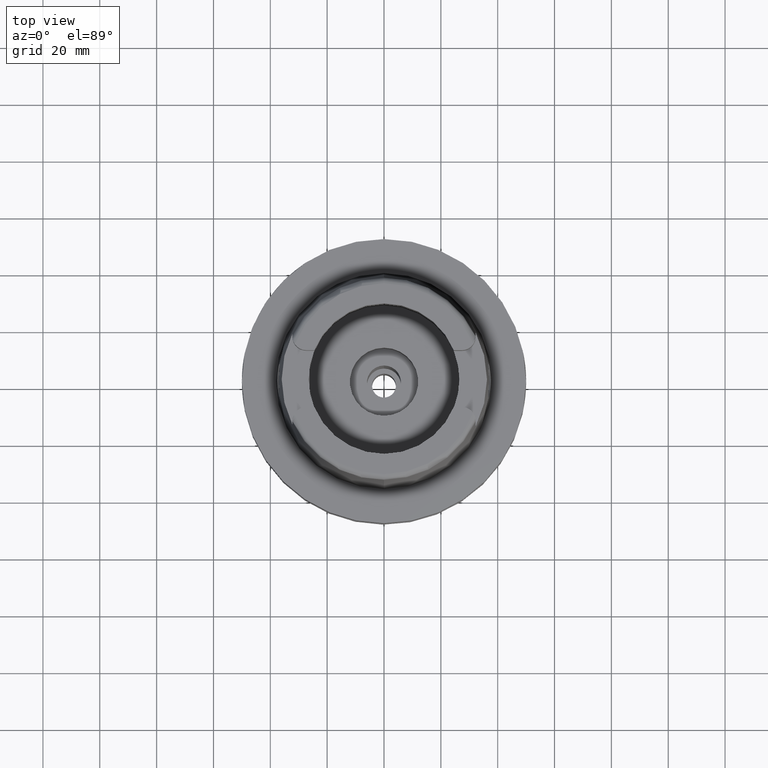
[diagram: clean part render]
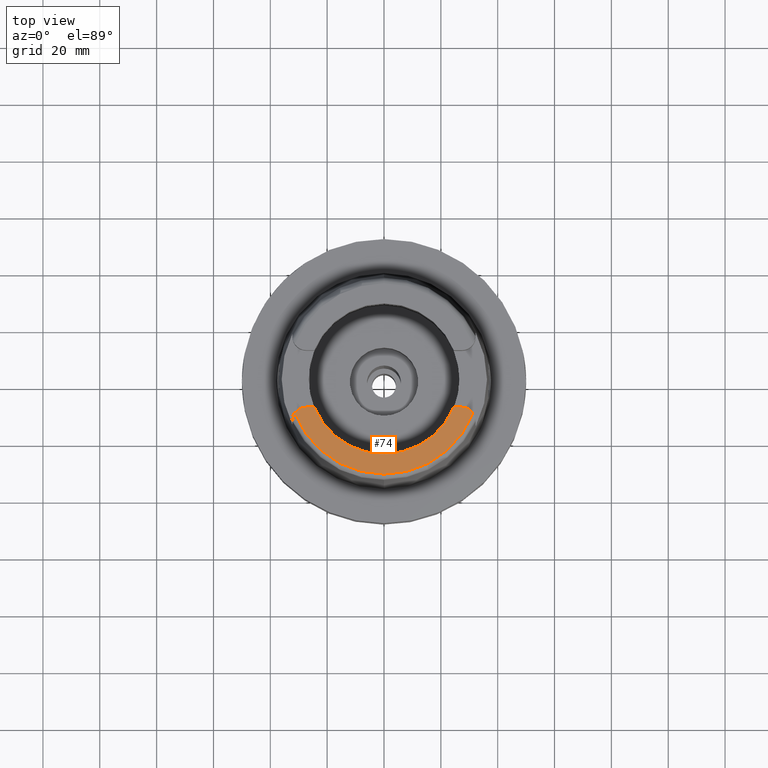
[diagram: same view with one face highlighted and labeled with its STEP entity id]
A machine part, top view. The second image highlights one B-rep face of the part: STEP entity #74.
In plain terms, the highlighted planar face has unit normal (0, 0, 1).
Its self-contained STEP definition (entity closure, byte-faithful):
#74 = ADVANCED_FACE ( 'NONE', ( #435 ), #1631, .T. ) ;
#363 = DIRECTION ( 'NONE',  ( -0.8163632566568778115, 0.5775387720149849358, 0.0000000000000000000 ) ) ;
#424 = VERTEX_POINT ( 'NONE', #765 ) ;
#435 = FACE_OUTER_BOUND ( 'NONE', #5326, .T. ) ;
#438 = AXIS2_PLACEMENT_3D ( 'NONE', #4232, #2893, #4143 ) ;
#584 = CARTESIAN_POINT ( 'NONE',  ( 0.0000000000000000000, -26.50000000000000000, 50.00000000000000000 ) ) ;
#765 = CARTESIAN_POINT ( 'NONE',  ( 24.53670515777999839, -10.00999999999999979, 50.00000000000000000 ) ) ;
#786 = DIRECTION ( 'NONE',  ( 0.0000000000000000000, 0.0000000000000000000, -1.000000000000000000 ) ) ;
#805 = EDGE_CURVE ( 'NONE', #3854, #2234, #3182, .T. ) ;
#1424 = ORIENTED_EDGE ( 'NONE', *, *, #5465, .F. ) ;
#1480 = VECTOR ( 'NONE', #1505, 1000.000000000000000 ) ;
#1505 = DIRECTION ( 'NONE',  ( -1.000000000000000000, 1.442003377036999905E-13, 0.0000000000000000000 ) ) ;
#1513 = CIRCLE ( 'NONE', #4410, 26.50000000000000711 ) ;
#1631 = PLANE ( 'NONE',  #4724 ) ;
#1660 = DIRECTION ( 'NONE',  ( 0.0000000000000000000, 0.0000000000000000000, 1.000000000000000000 ) ) ;
#1669 = ORIENTED_EDGE ( 'NONE', *, *, #1771, .T. ) ;
#1771 = EDGE_CURVE ( 'NONE', #2566, #424, #3162, .T. ) ;
#1776 = VERTEX_POINT ( 'NONE', #584 ) ;
#1779 = AXIS2_PLACEMENT_3D ( 'NONE', #2237, #1822, #5253 ) ;
#1822 = DIRECTION ( 'NONE',  ( 0.0000000000000000000, 0.0000000000000000000, 1.000000000000000000 ) ) ;
#1890 = CARTESIAN_POINT ( 'NONE',  ( 27.36999999999999744, -10.00999999999999979, 50.00000000000000000 ) ) ;
#1916 = DIRECTION ( 'NONE',  ( -0.9259134021805098813, -0.3777358490566039562, 0.0000000000000000000 ) ) ;
#2067 = CARTESIAN_POINT ( 'NONE',  ( 27.36999999999999744, -14.89000000000000057, 50.00000000000000000 ) ) ;
#2234 = VERTEX_POINT ( 'NONE', #3905 ) ;
#2237 = CARTESIAN_POINT ( 'NONE',  ( 0.0000000000000000000, 0.0000000000000000000, 50.00000000000000000 ) ) ;
#2316 = CIRCLE ( 'NONE', #5310, 4.879999999999999005 ) ;
#2416 = CARTESIAN_POINT ( 'NONE',  ( 0.0000000000000000000, 0.0000000000000000000, 50.00000000000000000 ) ) ;
#2451 = VECTOR ( 'NONE', #2673, 1000.000000000000000 ) ;
#2566 = VERTEX_POINT ( 'NONE', #4711 ) ;
#2673 = DIRECTION ( 'NONE',  ( -1.000000000000000000, -1.454542536837999925E-13, 0.0000000000000000000 ) ) ;
#2873 = CARTESIAN_POINT ( 'NONE',  ( -27.36999999999999744, -14.89000000000000057, 50.00000000000000000 ) ) ;
#2893 = DIRECTION ( 'NONE',  ( 0.0000000000000000000, 0.0000000000000000000, -1.000000000000000000 ) ) ;
#3065 = VERTEX_POINT ( 'NONE', #5117 ) ;
#3153 = CARTESIAN_POINT ( 'NONE',  ( -24.53670515777999839, -10.00999999999999979, 50.00000000000000000 ) ) ;
#3162 = LINE ( 'NONE', #1890, #2451 ) ;
#3182 = CIRCLE ( 'NONE', #4639, 4.880000000000001670 ) ;
#3394 = CARTESIAN_POINT ( 'NONE',  ( -31.35385269249000473, -12.07161079256999869, 50.00000000000000000 ) ) ;
#3411 = DIRECTION ( 'NONE',  ( 1.000000000000000000, 0.0000000000000000000, 0.0000000000000000000 ) ) ;
#3450 = ORIENTED_EDGE ( 'NONE', *, *, #805, .F. ) ;
#3515 = VERTEX_POINT ( 'NONE', #3807 ) ;
#3576 = CIRCLE ( 'NONE', #1779, 26.50000000000000000 ) ;
#3607 = CIRCLE ( 'NONE', #438, 33.59743838135999994 ) ;
#3669 = ORIENTED_EDGE ( 'NONE', *, *, #4546, .T. ) ;
#3714 = EDGE_CURVE ( 'NONE', #3065, #1776, #1513, .T. ) ;
#3807 = CARTESIAN_POINT ( 'NONE',  ( 31.35385269249000473, -12.07161079256999869, 50.00000000000000000 ) ) ;
#3818 = DIRECTION ( 'NONE',  ( 0.0000000000000000000, 1.000000000000000000, 0.0000000000000000000 ) ) ;
#3854 = VERTEX_POINT ( 'NONE', #3394 ) ;
#3905 = CARTESIAN_POINT ( 'NONE',  ( -27.36999999999999744, -10.00999999999999979, 50.00000000000000000 ) ) ;
#3947 = EDGE_CURVE ( 'NONE', #2566, #3515, #2316, .T. ) ;
#4064 = DIRECTION ( 'NONE',  ( 0.0000000000000000000, 0.0000000000000000000, 1.000000000000000000 ) ) ;
#4100 = EDGE_CURVE ( 'NONE', #3515, #3854, #3607, .T. ) ;
#4126 = ORIENTED_EDGE ( 'NONE', *, *, #3947, .F. ) ;
#4143 = DIRECTION ( 'NONE',  ( 0.9332215253017949186, -0.3593015233941980191, 0.0000000000000000000 ) ) ;
#4232 = CARTESIAN_POINT ( 'NONE',  ( 0.0000000000000000000, 0.0000000000000000000, 50.00000000000000000 ) ) ;
#4285 = CARTESIAN_POINT ( 'NONE',  ( 0.0000000000000000000, 0.0000000000000000000, 50.00000000000000000 ) ) ;
#4410 = AXIS2_PLACEMENT_3D ( 'NONE', #2416, #4064, #1916 ) ;
#4546 = EDGE_CURVE ( 'NONE', #3065, #2234, #4853, .T. ) ;
#4639 = AXIS2_PLACEMENT_3D ( 'NONE', #2873, #786, #363 ) ;
#4641 = ORIENTED_EDGE ( 'NONE', *, *, #3714, .F. ) ;
#4711 = CARTESIAN_POINT ( 'NONE',  ( 27.36999999999999744, -10.00999999999999979, 50.00000000000000000 ) ) ;
#4724 = AXIS2_PLACEMENT_3D ( 'NONE', #4285, #1660, #3411 ) ;
#4853 = LINE ( 'NONE', #3153, #1480 ) ;
#5117 = CARTESIAN_POINT ( 'NONE',  ( -24.53670515777999839, -10.00999999999999979, 50.00000000000000000 ) ) ;
#5141 = ORIENTED_EDGE ( 'NONE', *, *, #4100, .F. ) ;
#5253 = DIRECTION ( 'NONE',  ( 0.0000000000000000000, -1.000000000000000000, 0.0000000000000000000 ) ) ;
#5310 = AXIS2_PLACEMENT_3D ( 'NONE', #2067, #5499, #3818 ) ;
#5326 = EDGE_LOOP ( 'NONE', ( #5141, #4126, #1669, #1424, #4641, #3669, #3450 ) ) ;
#5465 = EDGE_CURVE ( 'NONE', #1776, #424, #3576, .T. ) ;
#5499 = DIRECTION ( 'NONE',  ( 0.0000000000000000000, 0.0000000000000000000, -1.000000000000000000 ) ) ;